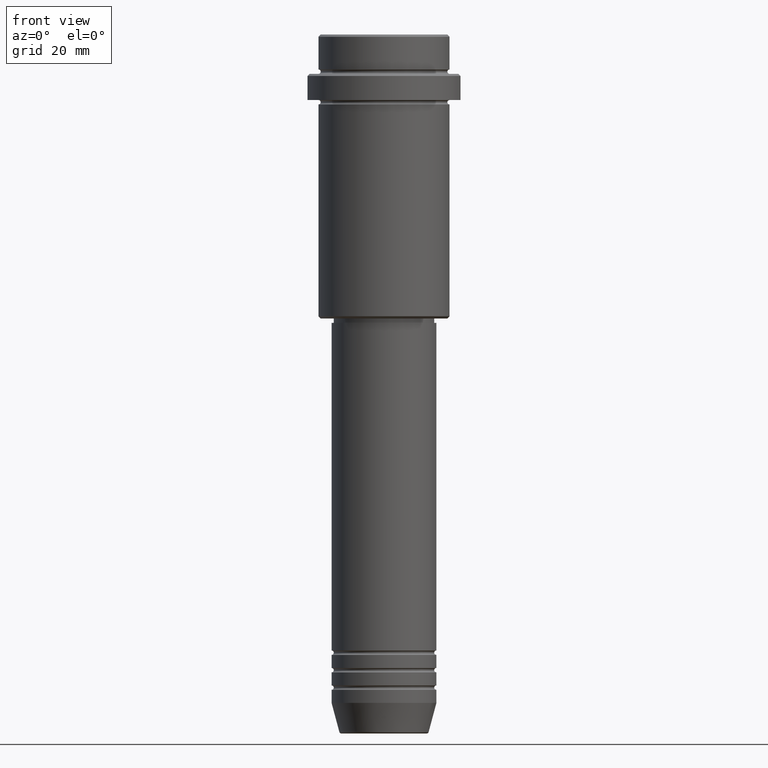
[diagram: clean part render]
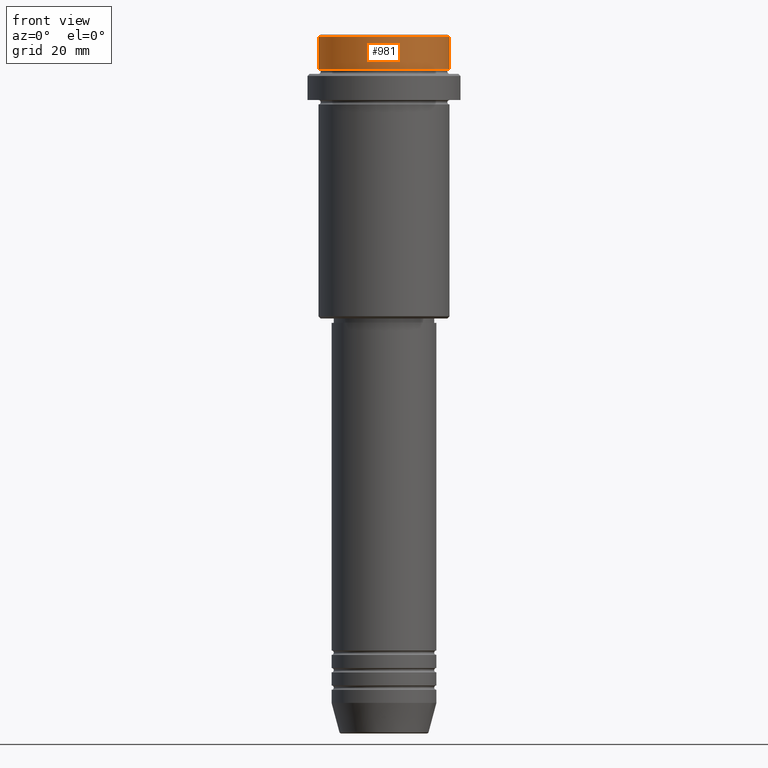
[diagram: same view with one face highlighted and labeled with its STEP entity id]
A machine part, front view. The second image highlights one B-rep face of the part: STEP entity #981.
In plain terms, the highlighted cylindrical surface (partial cylindrical patch) has radius 15 mm, axis along (-0, -0, 1).
Its self-contained STEP definition (entity closure, byte-faithful):
#46 = LINE ( 'NONE', #1158, #1123 ) ;
#118 = CYLINDRICAL_SURFACE ( 'NONE', #1003, 15.00000000000000000 ) ;
#170 = VERTEX_POINT ( 'NONE', #1379 ) ;
#178 = ORIENTED_EDGE ( 'NONE', *, *, #1118, .T. ) ;
#192 = DIRECTION ( 'NONE',  ( -0.000000000000000000, -0.000000000000000000, 1.000000000000000000 ) ) ;
#233 = EDGE_CURVE ( 'NONE', #1367, #1335, #46, .T. ) ;
#268 = VERTEX_POINT ( 'NONE', #377 ) ;
#272 = ORIENTED_EDGE ( 'NONE', *, *, #754, .F. ) ;
#363 = FACE_OUTER_BOUND ( 'NONE', #1233, .T. ) ;
#377 = CARTESIAN_POINT ( 'NONE',  ( -15.00000000000000000, 1.836970198721029589E-15, -7.999999999999998224 ) ) ;
#381 = DIRECTION ( 'NONE',  ( -0.000000000000000000, -0.000000000000000000, 1.000000000000000000 ) ) ;
#410 = CARTESIAN_POINT ( 'NONE',  ( 0.000000000000000000, 0.000000000000000000, -7.999999999999998224 ) ) ;
#420 = AXIS2_PLACEMENT_3D ( 'NONE', #778, #1199, #559 ) ;
#476 = ORIENTED_EDGE ( 'NONE', *, *, #233, .T. ) ;
#492 = ORIENTED_EDGE ( 'NONE', *, *, #518, .T. ) ;
#500 = LINE ( 'NONE', #1338, #837 ) ;
#518 = EDGE_CURVE ( 'NONE', #268, #1367, #554, .T. ) ;
#554 = CIRCLE ( 'NONE', #1185, 15.00000000000000000 ) ;
#559 = DIRECTION ( 'NONE',  ( 1.000000000000000000, 0.000000000000000000, 0.000000000000000000 ) ) ;
#633 = DIRECTION ( 'NONE',  ( 1.000000000000000000, 0.000000000000000000, 0.000000000000000000 ) ) ;
#663 = DIRECTION ( 'NONE',  ( -0.000000000000000000, -0.000000000000000000, 1.000000000000000000 ) ) ;
#706 = DIRECTION ( 'NONE',  ( -0.000000000000000000, -0.000000000000000000, 1.000000000000000000 ) ) ;
#721 = CIRCLE ( 'NONE', #420, 15.00000000000000000 ) ;
#734 = CARTESIAN_POINT ( 'NONE',  ( 15.00000000000000000, 0.000000000000000000, -0.4999999999999970024 ) ) ;
#754 = EDGE_CURVE ( 'NONE', #268, #170, #500, .T. ) ;
#778 = CARTESIAN_POINT ( 'NONE',  ( 0.000000000000000000, 0.000000000000000000, -0.4999999999999970024 ) ) ;
#783 = CARTESIAN_POINT ( 'NONE',  ( 0.000000000000000000, 0.000000000000000000, 0.000000000000000000 ) ) ;
#837 = VECTOR ( 'NONE', #381, 1000.000000000000000 ) ;
#981 = ADVANCED_FACE ( 'NONE', ( #363 ), #118, .T. ) ;
#1003 = AXIS2_PLACEMENT_3D ( 'NONE', #783, #663, #1077 ) ;
#1077 = DIRECTION ( 'NONE',  ( 1.000000000000000000, 0.000000000000000000, 0.000000000000000000 ) ) ;
#1118 = EDGE_CURVE ( 'NONE', #1335, #170, #721, .T. ) ;
#1123 = VECTOR ( 'NONE', #706, 1000.000000000000000 ) ;
#1158 = CARTESIAN_POINT ( 'NONE',  ( 15.00000000000000000, 0.000000000000000000, 0.000000000000000000 ) ) ;
#1185 = AXIS2_PLACEMENT_3D ( 'NONE', #410, #192, #633 ) ;
#1199 = DIRECTION ( 'NONE',  ( 0.000000000000000000, 0.000000000000000000, -1.000000000000000000 ) ) ;
#1233 = EDGE_LOOP ( 'NONE', ( #272, #492, #476, #178 ) ) ;
#1287 = CARTESIAN_POINT ( 'NONE',  ( 15.00000000000000000, 0.000000000000000000, -7.999999999999998224 ) ) ;
#1335 = VERTEX_POINT ( 'NONE', #734 ) ;
#1338 = CARTESIAN_POINT ( 'NONE',  ( -15.00000000000000000, 1.836970198721029589E-15, 0.000000000000000000 ) ) ;
#1367 = VERTEX_POINT ( 'NONE', #1287 ) ;
#1379 = CARTESIAN_POINT ( 'NONE',  ( -15.00000000000000000, 1.836970198721029589E-15, -0.4999999999999970024 ) ) ;